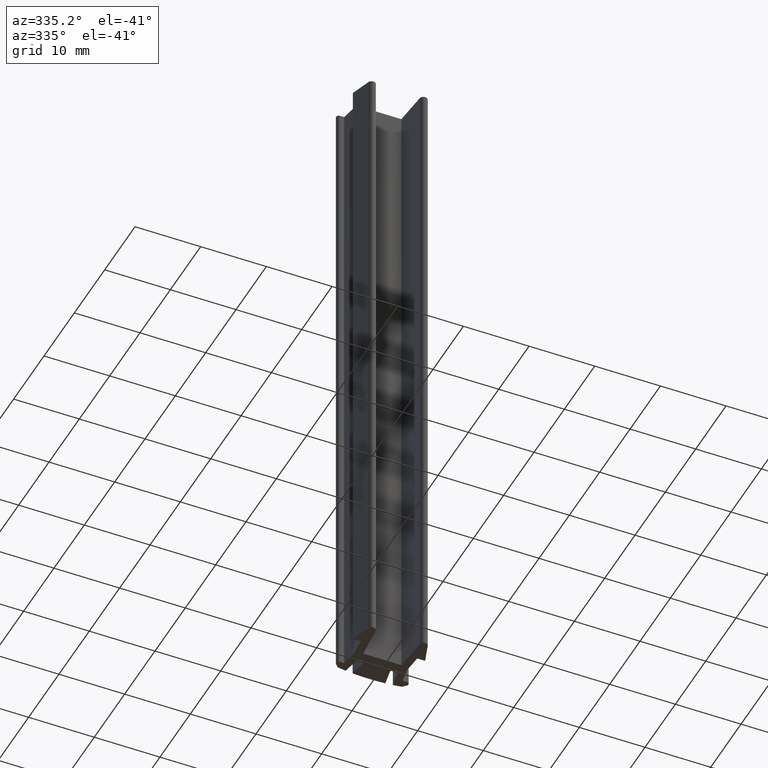
[diagram: clean part render]
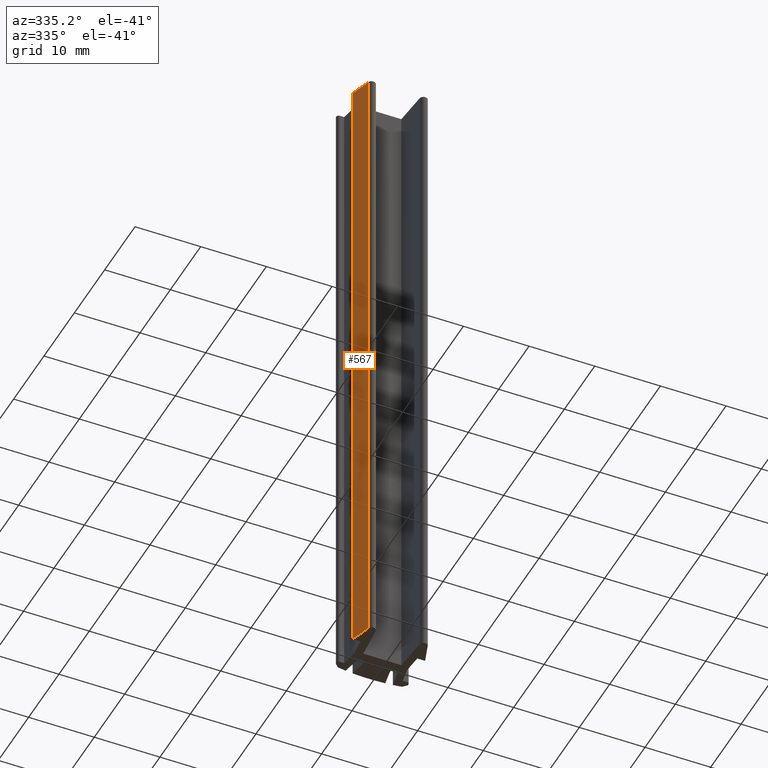
[diagram: same view with one face highlighted and labeled with its STEP entity id]
A machine part, auxiliary view. The second image highlights one B-rep face of the part: STEP entity #567.
In plain terms, the highlighted planar face has unit normal (-0.9495, -0.3138, 0).
Its self-contained STEP definition (entity closure, byte-faithful):
#46=FACE_OUTER_BOUND('',#76,.T.);
#76=EDGE_LOOP('',(#390,#391,#392,#393));
#112=LINE('',#852,#178);
#113=LINE('',#855,#179);
#114=LINE('',#857,#180);
#115=LINE('',#858,#181);
#178=VECTOR('',#685,10.);
#179=VECTOR('',#688,10.);
#180=VECTOR('',#689,10.);
#181=VECTOR('',#690,10.);
#242=VERTEX_POINT('',#848);
#243=VERTEX_POINT('',#850);
#244=VERTEX_POINT('',#854);
#245=VERTEX_POINT('',#856);
#302=EDGE_CURVE('',#242,#243,#112,.T.);
#303=EDGE_CURVE('',#244,#242,#113,.T.);
#304=EDGE_CURVE('',#245,#243,#114,.T.);
#305=EDGE_CURVE('',#244,#245,#115,.T.);
#390=ORIENTED_EDGE('',*,*,#303,.T.);
#391=ORIENTED_EDGE('',*,*,#302,.T.);
#392=ORIENTED_EDGE('',*,*,#304,.F.);
#393=ORIENTED_EDGE('',*,*,#305,.F.);
#545=PLANE('',#619);
#567=ADVANCED_FACE('',(#46),#545,.T.);
#619=AXIS2_PLACEMENT_3D('',#853,#686,#687);
#685=DIRECTION('',(0.,0.,1.));
#686=DIRECTION('center_axis',(-0.949486927816688,-0.313806586777951,0.));
#687=DIRECTION('ref_axis',(0.313806586777951,-0.949486927816688,0.));
#688=DIRECTION('',(0.313806586777951,-0.949486927816688,0.));
#689=DIRECTION('',(0.313806586777951,-0.949486927816688,0.));
#690=DIRECTION('',(0.,0.,1.));
#848=CARTESIAN_POINT('',(-4.51236851203659,-5.18828395206677,0.));
#850=CARTESIAN_POINT('',(-4.51236851203659,-5.18828395206677,100.));
#852=CARTESIAN_POINT('',(-4.51236851203659,-5.18828395206677,0.));
#853=CARTESIAN_POINT('Origin',(-5.5,-2.2,0.));
#854=CARTESIAN_POINT('',(-5.5,-2.2,0.));
#855=CARTESIAN_POINT('',(-5.5,-2.2,0.));
#856=CARTESIAN_POINT('',(-5.5,-2.2,100.));
#857=CARTESIAN_POINT('',(-5.5,-2.2,100.));
#858=CARTESIAN_POINT('',(-5.5,-2.2,0.));